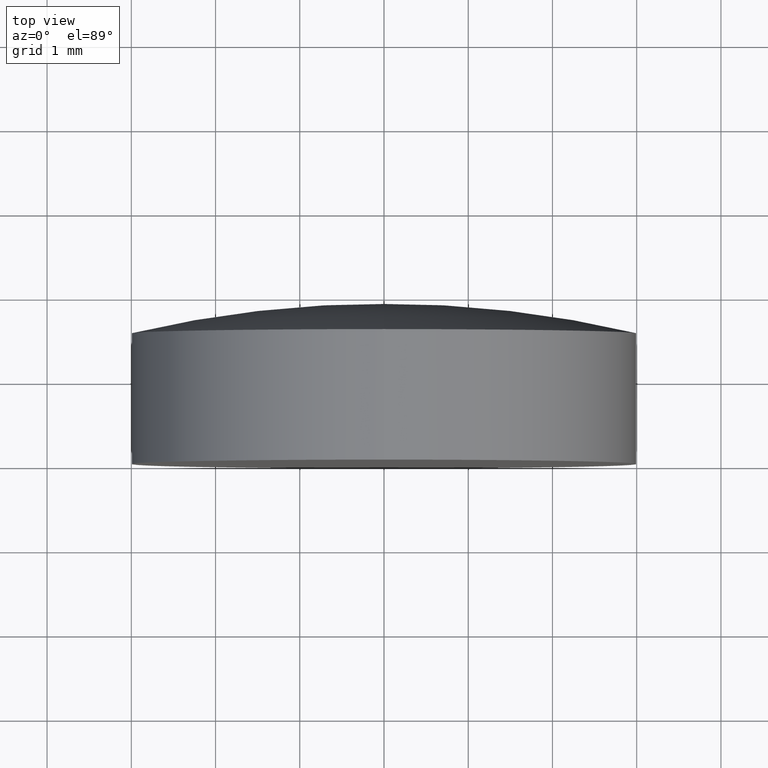
[diagram: clean part render]
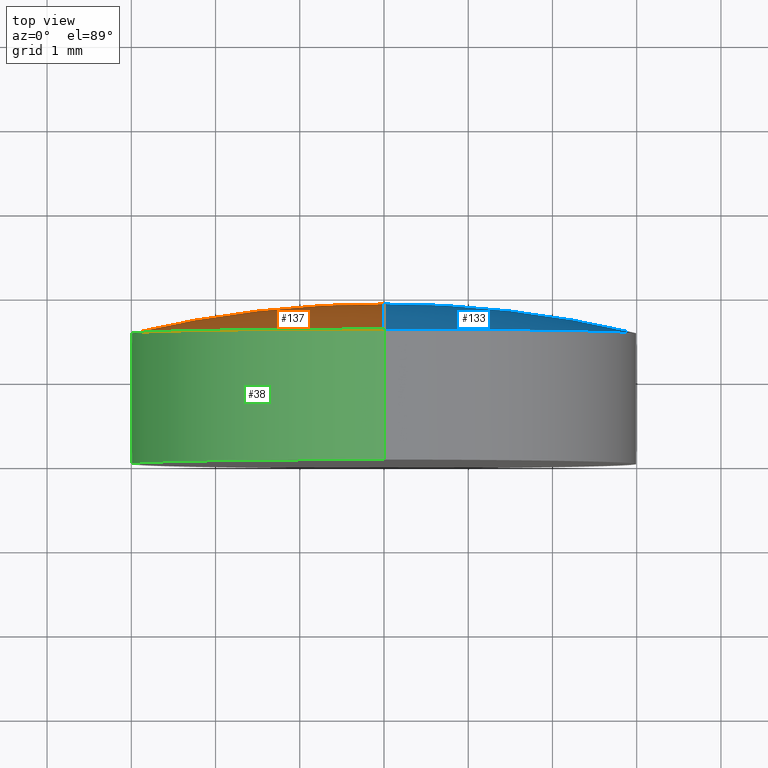
[diagram: same view with three faces highlighted in distinct colors, each labeled with its STEP entity id]
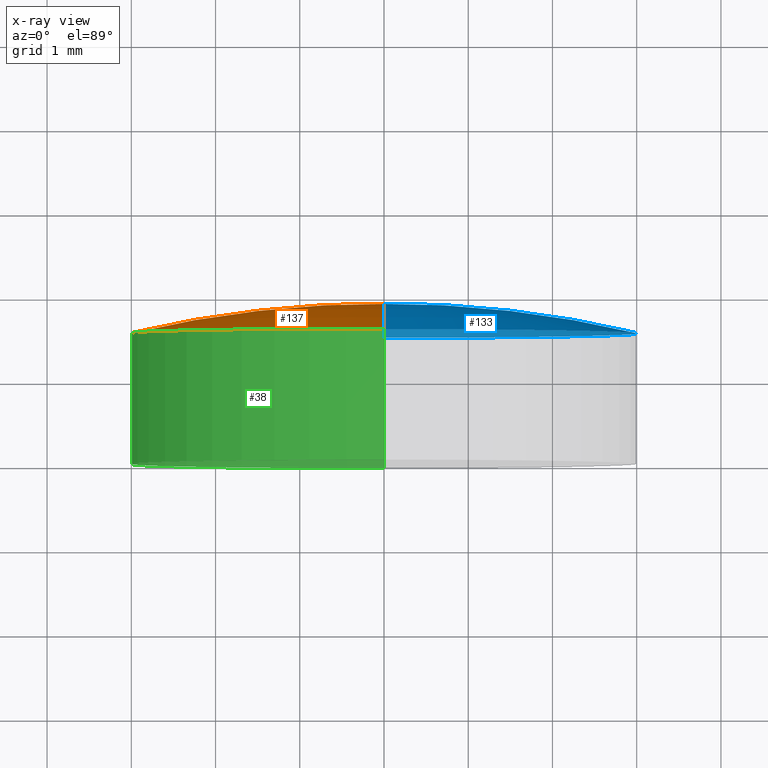
[diagram: x-ray of the same camera — body ghosted, the three highlighted faces saturated]
A machine part, top view with three faces highlighted in distinct colors.
The next image is the same camera in x-ray (body ghosted, the three faces saturated) — at least one of them is partly hidden behind the body in this view.
Their STEP definitions:

[orange] entity #137 — the highlighted toroidal blend (fillet) surface has major radius 0.0143 mm and minor (blend) radius 12.91 mm.
#23 = VERTEX_POINT ( 'NONE', #139 ) ;
#24 = DIRECTION ( 'NONE',  ( -0.000000000000000000, 1.000000000000000000, -0.000000000000000000 ) ) ;
#39 = CIRCLE ( 'NONE', #64, 3.000000000000000000 ) ;
#44 = CARTESIAN_POINT ( 'NONE',  ( 3.673940397442059375E-16, 1.549999999999999378, -2.999999999999999112 ) ) ;
#64 = AXIS2_PLACEMENT_3D ( 'NONE', #155, #24, #94 ) ;
#69 = CIRCLE ( 'NONE', #188, 12.90999999999999481 ) ;
#75 = ORIENTED_EDGE ( 'NONE', *, *, #79, .T. ) ;
#76 = CARTESIAN_POINT ( 'NONE',  ( 1.745234068310833202E-18, -11.00999213444167957, -0.01425091764846756967 ) ) ;
#79 = EDGE_CURVE ( 'NONE', #166, #134, #39, .T. ) ;
#86 = EDGE_LOOP ( 'NONE', ( #183, #75, #105 ) ) ;
#90 = CARTESIAN_POINT ( 'NONE',  ( 0.000000000000000000, -11.00999213444167957, 0.000000000000000000 ) ) ;
#92 = DIRECTION ( 'NONE',  ( -0.000000000000000000, 1.000000000000000000, -0.000000000000000000 ) ) ;
#94 = DIRECTION ( 'NONE',  ( 0.000000000000000000, 0.000000000000000000, 1.000000000000000000 ) ) ;
#102 = EDGE_CURVE ( 'NONE', #134, #23, #128, .T. ) ;
#105 = ORIENTED_EDGE ( 'NONE', *, *, #102, .T. ) ;
#108 = TOROIDAL_SURFACE ( 'NONE', #162, 0.01425091764846756967, 12.90999999999999481 ) ;
#109 = CARTESIAN_POINT ( 'NONE',  ( 0.000000000000000000, 1.549999999999999378, 2.999999999999999112 ) ) ;
#121 = DIRECTION ( 'NONE',  ( 1.000000000000000000, 0.000000000000000000, 1.224646799147353207E-16 ) ) ;
#124 = DIRECTION ( 'NONE',  ( 0.000000000000000000, 0.000000000000000000, 1.000000000000000000 ) ) ;
#128 = CIRCLE ( 'NONE', #181, 12.90999999999999481 ) ;
#134 = VERTEX_POINT ( 'NONE', #109 ) ;
#136 = FACE_OUTER_BOUND ( 'NONE', #86, .T. ) ;
#137 = ADVANCED_FACE ( 'NONE', ( #136 ), #108, .T. ) ;
#138 = DIRECTION ( 'NONE',  ( 0.000000000000000000, 0.000000000000000000, 1.000000000000000000 ) ) ;
#139 = CARTESIAN_POINT ( 'NONE',  ( 0.000000000000000000, 1.900000000000000133, 0.000000000000000000 ) ) ;
#152 = EDGE_CURVE ( 'NONE', #166, #23, #69, .T. ) ;
#153 = DIRECTION ( 'NONE',  ( -1.000000000000000000, 0.000000000000000000, 0.000000000000000000 ) ) ;
#155 = CARTESIAN_POINT ( 'NONE',  ( 0.000000000000000000, 1.549999999999999600, 0.000000000000000000 ) ) ;
#162 = AXIS2_PLACEMENT_3D ( 'NONE', #90, #92, #138 ) ;
#166 = VERTEX_POINT ( 'NONE', #44 ) ;
#181 = AXIS2_PLACEMENT_3D ( 'NONE', #201, #153, #124 ) ;
#183 = ORIENTED_EDGE ( 'NONE', *, *, #152, .F. ) ;
#186 = DIRECTION ( 'NONE',  ( 1.224646799147353207E-16, 0.000000000000000000, -1.000000000000000000 ) ) ;
#188 = AXIS2_PLACEMENT_3D ( 'NONE', #76, #121, #186 ) ;
#201 = CARTESIAN_POINT ( 'NONE',  ( 0.000000000000000000, -11.00999213444167957, 0.01425091764846756967 ) ) ;

[blue] entity #133 — the highlighted toroidal blend (fillet) surface has major radius 0.0143 mm and minor (blend) radius 12.91 mm.
#1 = DIRECTION ( 'NONE',  ( -0.000000000000000000, 1.000000000000000000, -0.000000000000000000 ) ) ;
#15 = DIRECTION ( 'NONE',  ( -0.000000000000000000, 1.000000000000000000, -0.000000000000000000 ) ) ;
#16 = ORIENTED_EDGE ( 'NONE', *, *, #102, .F. ) ;
#20 = AXIS2_PLACEMENT_3D ( 'NONE', #112, #1, #173 ) ;
#23 = VERTEX_POINT ( 'NONE', #139 ) ;
#44 = CARTESIAN_POINT ( 'NONE',  ( 3.673940397442059375E-16, 1.549999999999999378, -2.999999999999999112 ) ) ;
#45 = DIRECTION ( 'NONE',  ( 0.000000000000000000, 0.000000000000000000, 1.000000000000000000 ) ) ;
#46 = TOROIDAL_SURFACE ( 'NONE', #82, 0.01425091764846756967, 12.90999999999999481 ) ;
#69 = CIRCLE ( 'NONE', #188, 12.90999999999999481 ) ;
#76 = CARTESIAN_POINT ( 'NONE',  ( 1.745234068310833202E-18, -11.00999213444167957, -0.01425091764846756967 ) ) ;
#77 = CARTESIAN_POINT ( 'NONE',  ( 0.000000000000000000, -11.00999213444167957, 0.000000000000000000 ) ) ;
#82 = AXIS2_PLACEMENT_3D ( 'NONE', #77, #15, #45 ) ;
#88 = ORIENTED_EDGE ( 'NONE', *, *, #119, .T. ) ;
#91 = FACE_OUTER_BOUND ( 'NONE', #104, .T. ) ;
#102 = EDGE_CURVE ( 'NONE', #134, #23, #128, .T. ) ;
#104 = EDGE_LOOP ( 'NONE', ( #88, #126, #16 ) ) ;
#109 = CARTESIAN_POINT ( 'NONE',  ( 0.000000000000000000, 1.549999999999999378, 2.999999999999999112 ) ) ;
#112 = CARTESIAN_POINT ( 'NONE',  ( 0.000000000000000000, 1.549999999999999600, 0.000000000000000000 ) ) ;
#119 = EDGE_CURVE ( 'NONE', #134, #166, #135, .T. ) ;
#121 = DIRECTION ( 'NONE',  ( 1.000000000000000000, 0.000000000000000000, 1.224646799147353207E-16 ) ) ;
#124 = DIRECTION ( 'NONE',  ( 0.000000000000000000, 0.000000000000000000, 1.000000000000000000 ) ) ;
#126 = ORIENTED_EDGE ( 'NONE', *, *, #152, .T. ) ;
#128 = CIRCLE ( 'NONE', #181, 12.90999999999999481 ) ;
#133 = ADVANCED_FACE ( 'NONE', ( #91 ), #46, .T. ) ;
#134 = VERTEX_POINT ( 'NONE', #109 ) ;
#135 = CIRCLE ( 'NONE', #20, 3.000000000000000000 ) ;
#139 = CARTESIAN_POINT ( 'NONE',  ( 0.000000000000000000, 1.900000000000000133, 0.000000000000000000 ) ) ;
#152 = EDGE_CURVE ( 'NONE', #166, #23, #69, .T. ) ;
#153 = DIRECTION ( 'NONE',  ( -1.000000000000000000, 0.000000000000000000, 0.000000000000000000 ) ) ;
#166 = VERTEX_POINT ( 'NONE', #44 ) ;
#173 = DIRECTION ( 'NONE',  ( 0.000000000000000000, 0.000000000000000000, 1.000000000000000000 ) ) ;
#181 = AXIS2_PLACEMENT_3D ( 'NONE', #201, #153, #124 ) ;
#186 = DIRECTION ( 'NONE',  ( 1.224646799147353207E-16, 0.000000000000000000, -1.000000000000000000 ) ) ;
#188 = AXIS2_PLACEMENT_3D ( 'NONE', #76, #121, #186 ) ;
#201 = CARTESIAN_POINT ( 'NONE',  ( 0.000000000000000000, -11.00999213444167957, 0.01425091764846756967 ) ) ;

[green] entity #38 — the highlighted cylindrical surface (partial cylindrical patch) has radius 3 mm, axis along (-0, 1, -0).
#2 = DIRECTION ( 'NONE',  ( 0.000000000000000000, 0.000000000000000000, 1.000000000000000000 ) ) ;
#3 = CYLINDRICAL_SURFACE ( 'NONE', #170, 3.000000000000000000 ) ;
#10 = ORIENTED_EDGE ( 'NONE', *, *, #43, .T. ) ;
#12 = VECTOR ( 'NONE', #157, 1000.000000000000000 ) ;
#13 = EDGE_LOOP ( 'NONE', ( #106, #10, #148, #120 ) ) ;
#14 = VERTEX_POINT ( 'NONE', #156 ) ;
#24 = DIRECTION ( 'NONE',  ( -0.000000000000000000, 1.000000000000000000, -0.000000000000000000 ) ) ;
#27 = CIRCLE ( 'NONE', #100, 3.000000000000000000 ) ;
#28 = DIRECTION ( 'NONE',  ( -0.000000000000000000, 1.000000000000000000, -0.000000000000000000 ) ) ;
#38 = ADVANCED_FACE ( 'NONE', ( #127 ), #3, .T. ) ;
#39 = CIRCLE ( 'NONE', #64, 3.000000000000000000 ) ;
#43 = EDGE_CURVE ( 'NONE', #14, #140, #27, .T. ) ;
#44 = CARTESIAN_POINT ( 'NONE',  ( 3.673940397442059375E-16, 1.549999999999999378, -2.999999999999999112 ) ) ;
#47 = LINE ( 'NONE', #172, #70 ) ;
#49 = CARTESIAN_POINT ( 'NONE',  ( 0.000000000000000000, 1.900000000000000133, 3.000000000000000000 ) ) ;
#55 = EDGE_CURVE ( 'NONE', #140, #134, #168, .T. ) ;
#56 = CARTESIAN_POINT ( 'NONE',  ( 0.000000000000000000, 1.900000000000000133, 0.000000000000000000 ) ) ;
#58 = DIRECTION ( 'NONE',  ( -0.000000000000000000, 1.000000000000000000, -0.000000000000000000 ) ) ;
#61 = DIRECTION ( 'NONE',  ( 0.000000000000000000, 0.000000000000000000, 1.000000000000000000 ) ) ;
#64 = AXIS2_PLACEMENT_3D ( 'NONE', #155, #24, #94 ) ;
#70 = VECTOR ( 'NONE', #141, 1000.000000000000000 ) ;
#79 = EDGE_CURVE ( 'NONE', #166, #134, #39, .T. ) ;
#94 = DIRECTION ( 'NONE',  ( 0.000000000000000000, 0.000000000000000000, 1.000000000000000000 ) ) ;
#100 = AXIS2_PLACEMENT_3D ( 'NONE', #187, #58, #2 ) ;
#106 = ORIENTED_EDGE ( 'NONE', *, *, #197, .F. ) ;
#109 = CARTESIAN_POINT ( 'NONE',  ( 0.000000000000000000, 1.549999999999999378, 2.999999999999999112 ) ) ;
#111 = CARTESIAN_POINT ( 'NONE',  ( 0.000000000000000000, -4.336808689942017736E-16, 3.000000000000000000 ) ) ;
#120 = ORIENTED_EDGE ( 'NONE', *, *, #79, .F. ) ;
#127 = FACE_OUTER_BOUND ( 'NONE', #13, .T. ) ;
#134 = VERTEX_POINT ( 'NONE', #109 ) ;
#140 = VERTEX_POINT ( 'NONE', #111 ) ;
#141 = DIRECTION ( 'NONE',  ( -0.000000000000000000, 1.000000000000000000, -0.000000000000000000 ) ) ;
#148 = ORIENTED_EDGE ( 'NONE', *, *, #55, .T. ) ;
#155 = CARTESIAN_POINT ( 'NONE',  ( 0.000000000000000000, 1.549999999999999600, 0.000000000000000000 ) ) ;
#156 = CARTESIAN_POINT ( 'NONE',  ( 3.673940397442059868E-16, -4.336808689942017736E-16, -3.000000000000000000 ) ) ;
#157 = DIRECTION ( 'NONE',  ( -0.000000000000000000, 1.000000000000000000, -0.000000000000000000 ) ) ;
#166 = VERTEX_POINT ( 'NONE', #44 ) ;
#168 = LINE ( 'NONE', #49, #12 ) ;
#170 = AXIS2_PLACEMENT_3D ( 'NONE', #56, #28, #61 ) ;
#172 = CARTESIAN_POINT ( 'NONE',  ( 3.673940397442059868E-16, 1.900000000000000133, -3.000000000000000000 ) ) ;
#187 = CARTESIAN_POINT ( 'NONE',  ( 0.000000000000000000, -4.336808689942017736E-16, 0.000000000000000000 ) ) ;
#197 = EDGE_CURVE ( 'NONE', #14, #166, #47, .T. ) ;